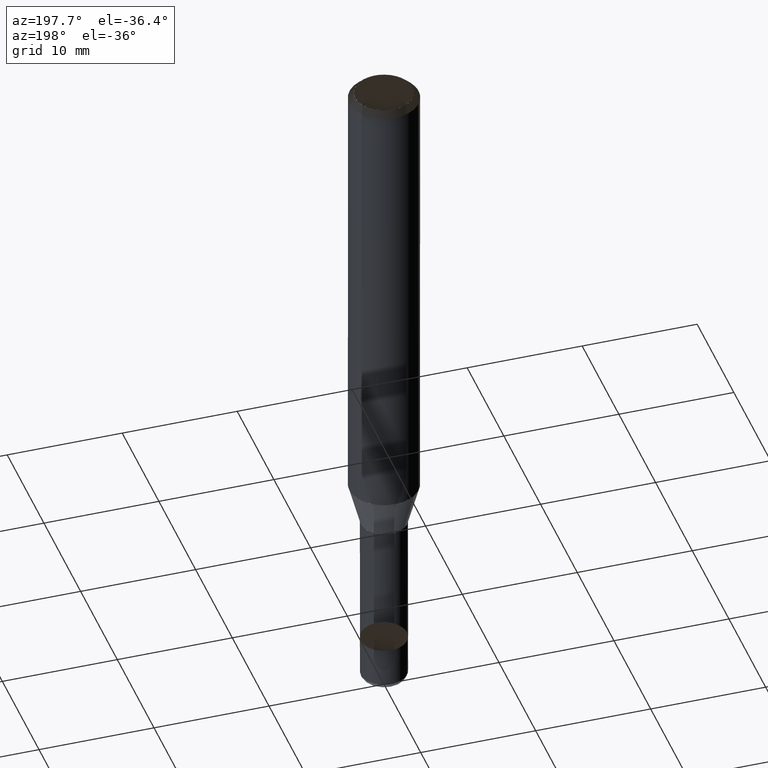
[diagram: clean part render]
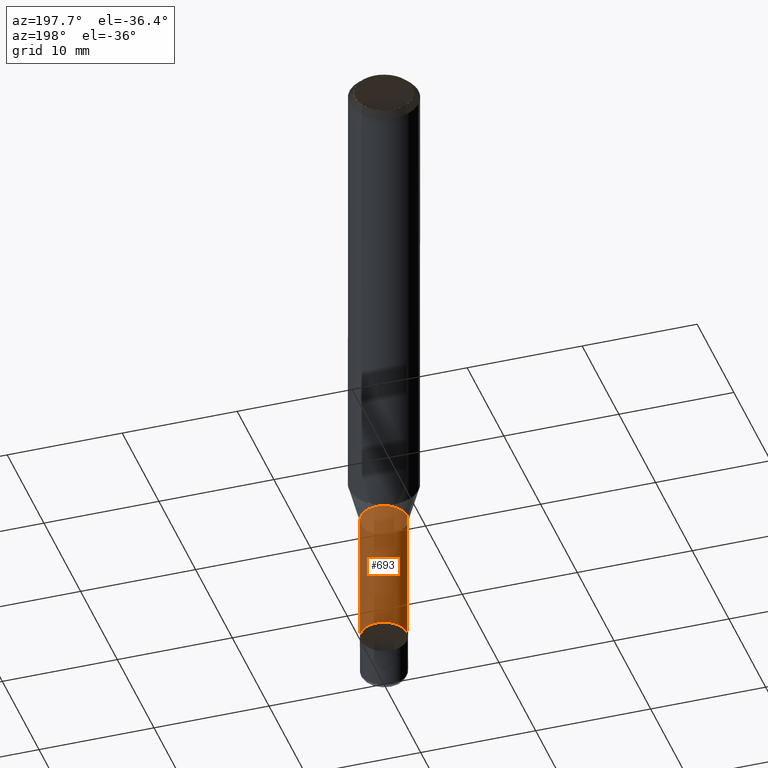
[diagram: same view with one face highlighted and labeled with its STEP entity id]
A machine part, auxiliary view. The second image highlights one B-rep face of the part: STEP entity #693.
In plain terms, the highlighted face is a freeform B-spline surface patch.
Its self-contained STEP definition (entity closure, byte-faithful):
#452=CARTESIAN_POINT('',(2.0,0.0,-15.732050807569));
#453=CARTESIAN_POINT('',(2.0,2.0,-15.732050807569));
#454=CARTESIAN_POINT('',(0.0,2.0,-15.732050807569));
#455=CARTESIAN_POINT('',(-2.0,2.0,-15.732050807569));
#456=CARTESIAN_POINT('',(-2.0,0.0,-15.732050807569));
#470=CARTESIAN_POINT('',(2.0,0.0,-3.732050807569));
#471=CARTESIAN_POINT('',(2.0,2.0,-3.732050807569));
#472=CARTESIAN_POINT('',(0.0,2.0,-3.732050807569));
#473=CARTESIAN_POINT('',(-2.0,2.0,-3.732050807569));
#474=CARTESIAN_POINT('',(-2.0,0.0,-3.732050807569));
#674=(
BOUNDED_SURFACE()
B_SPLINE_SURFACE(1,2,(
(#452,#453,#454,#455,#456),
(#470,#471,#472,#473,#474)
), .UNSPECIFIED.,.F.,.F.,.F.)
B_SPLINE_SURFACE_WITH_KNOTS((2,2),(3,2,3),(
0.0,1.0),(
0.0,0.5,1.0), .UNSPECIFIED.)
GEOMETRIC_REPRESENTATION_ITEM()
RATIONAL_B_SPLINE_SURFACE(((1.0,0.707106781187,1.0,0.707106781187,1.0),
(1.0,0.707106781187,1.0,0.707106781187,1.0)
))
REPRESENTATION_ITEM('')
SURFACE()
);
#675=(
BOUNDED_CURVE()
B_SPLINE_CURVE(2,(#470,#471,#472,#473,#474),.UNSPECIFIED.,.F.,.F.)
B_SPLINE_CURVE_WITH_KNOTS((3,2,3),
(0.0,0.5,1.0),.UNSPECIFIED.)
CURVE()
GEOMETRIC_REPRESENTATION_ITEM()
RATIONAL_B_SPLINE_CURVE((1.0,0.707106781187,1.0,0.707106781187,1.0))
REPRESENTATION_ITEM('')
);
#676=(
BOUNDED_CURVE()
B_SPLINE_CURVE(1,(#474,#456),.UNSPECIFIED.,.F.,.F.)
B_SPLINE_CURVE_WITH_KNOTS((2,2),
(0.0,1.0),.UNSPECIFIED.)
CURVE()
GEOMETRIC_REPRESENTATION_ITEM()
RATIONAL_B_SPLINE_CURVE((1.0,1.0))
REPRESENTATION_ITEM('')
);
#677=(
BOUNDED_CURVE()
B_SPLINE_CURVE(2,(#456,#455,#454,#453,#452),.UNSPECIFIED.,.F.,.F.)
B_SPLINE_CURVE_WITH_KNOTS((3,2,3),
(0.0,0.5,1.0),.UNSPECIFIED.)
CURVE()
GEOMETRIC_REPRESENTATION_ITEM()
RATIONAL_B_SPLINE_CURVE((1.0,0.707106781187,1.0,0.707106781187,1.0))
REPRESENTATION_ITEM('')
);
#678=(
BOUNDED_CURVE()
B_SPLINE_CURVE(1,(#452,#470),.UNSPECIFIED.,.F.,.F.)
B_SPLINE_CURVE_WITH_KNOTS((2,2),
(0.0,1.0),.UNSPECIFIED.)
CURVE()
GEOMETRIC_REPRESENTATION_ITEM()
RATIONAL_B_SPLINE_CURVE((1.0,1.0))
REPRESENTATION_ITEM('')
);
#679=VERTEX_POINT('',#452);
#680=VERTEX_POINT('',#456);
#681=VERTEX_POINT('',#470);
#682=VERTEX_POINT('',#474);
#683=EDGE_CURVE('',#681,#682,#675,.T.);
#684=EDGE_CURVE('',#682,#680,#676,.T.);
#685=EDGE_CURVE('',#680,#679,#677,.T.);
#686=EDGE_CURVE('',#679,#681,#678,.T.);
#687=ORIENTED_EDGE('',*,*,#683,.T.);
#688=ORIENTED_EDGE('',*,*,#684,.T.);
#689=ORIENTED_EDGE('',*,*,#685,.T.);
#690=ORIENTED_EDGE('',*,*,#686,.T.);
#691=EDGE_LOOP('',(#687,#688,#689,#690));
#692=FACE_OUTER_BOUND('',#691,.T.);
#693=ADVANCED_FACE('',(#692),#674,.T.);